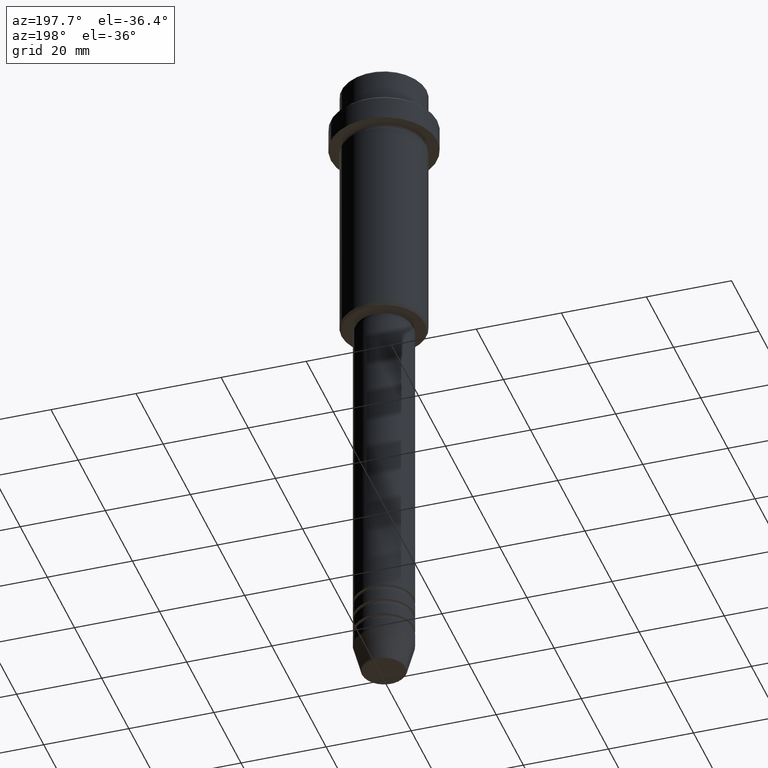
[diagram: clean part render]
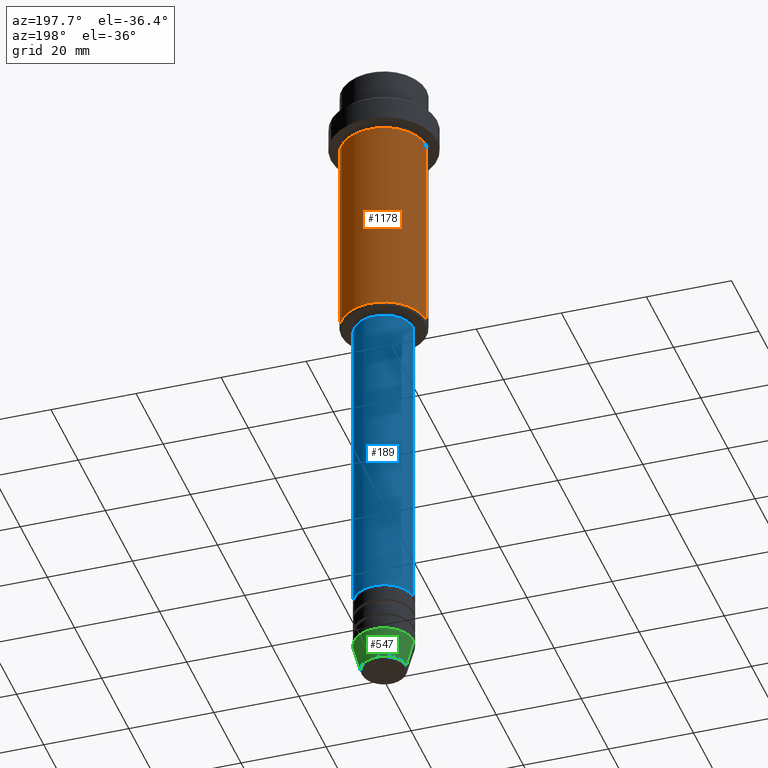
[diagram: same view with three faces highlighted in distinct colors, each labeled with its STEP entity id]
A machine part, auxiliary view with three faces highlighted in distinct colors.
Their STEP definitions:

[orange] entity #1178 — the highlighted cylindrical surface (partial cylindrical patch) has radius 10 mm, axis along (-0, -0, 1).
#62 = CARTESIAN_POINT ( 'NONE',  ( 9.999999999999998224, 0.000000000000000000, -16.00000000000000000 ) ) ;
#105 = DIRECTION ( 'NONE',  ( 1.000000000000000000, 0.000000000000000000, 0.000000000000000000 ) ) ;
#181 = EDGE_CURVE ( 'NONE', #377, #1325, #837, .T. ) ;
#245 = LINE ( 'NONE', #578, #1398 ) ;
#249 = DIRECTION ( 'NONE',  ( -0.000000000000000000, -0.000000000000000000, 1.000000000000000000 ) ) ;
#335 = CYLINDRICAL_SURFACE ( 'NONE', #1209, 9.999999999999998224 ) ;
#375 = DIRECTION ( 'NONE',  ( -0.000000000000000000, -0.000000000000000000, 1.000000000000000000 ) ) ;
#377 = VERTEX_POINT ( 'NONE', #889 ) ;
#395 = ORIENTED_EDGE ( 'NONE', *, *, #446, .F. ) ;
#446 = EDGE_CURVE ( 'NONE', #1016, #1325, #622, .T. ) ;
#474 = CARTESIAN_POINT ( 'NONE',  ( 0.000000000000000000, 0.000000000000000000, -64.50000000000000000 ) ) ;
#513 = CIRCLE ( 'NONE', #585, 9.999999999999998224 ) ;
#578 = CARTESIAN_POINT ( 'NONE',  ( 9.999999999999998224, 0.000000000000000000, 0.000000000000000000 ) ) ;
#585 = AXIS2_PLACEMENT_3D ( 'NONE', #474, #249, #1359 ) ;
#600 = ORIENTED_EDGE ( 'NONE', *, *, #181, .T. ) ;
#622 = CIRCLE ( 'NONE', #1041, 9.999999999999998224 ) ;
#664 = DIRECTION ( 'NONE',  ( -0.000000000000000000, -0.000000000000000000, 1.000000000000000000 ) ) ;
#766 = FACE_OUTER_BOUND ( 'NONE', #1014, .T. ) ;
#782 = CARTESIAN_POINT ( 'NONE',  ( 0.000000000000000000, 0.000000000000000000, 0.000000000000000000 ) ) ;
#823 = EDGE_CURVE ( 'NONE', #1318, #1016, #245, .T. ) ;
#837 = LINE ( 'NONE', #1271, #1349 ) ;
#885 = ORIENTED_EDGE ( 'NONE', *, *, #1305, .T. ) ;
#889 = CARTESIAN_POINT ( 'NONE',  ( -9.999999999999998224, 1.224646799147353059E-15, -64.50000000000000000 ) ) ;
#918 = CARTESIAN_POINT ( 'NONE',  ( 9.999999999999998224, 0.000000000000000000, -64.50000000000000000 ) ) ;
#997 = CARTESIAN_POINT ( 'NONE',  ( 0.000000000000000000, 0.000000000000000000, -16.00000000000000000 ) ) ;
#1014 = EDGE_LOOP ( 'NONE', ( #885, #600, #395, #1229 ) ) ;
#1016 = VERTEX_POINT ( 'NONE', #62 ) ;
#1041 = AXIS2_PLACEMENT_3D ( 'NONE', #997, #664, #1120 ) ;
#1045 = DIRECTION ( 'NONE',  ( -0.000000000000000000, -0.000000000000000000, 1.000000000000000000 ) ) ;
#1120 = DIRECTION ( 'NONE',  ( 1.000000000000000000, 0.000000000000000000, 0.000000000000000000 ) ) ;
#1178 = ADVANCED_FACE ( 'NONE', ( #766 ), #335, .T. ) ;
#1209 = AXIS2_PLACEMENT_3D ( 'NONE', #782, #1414, #105 ) ;
#1229 = ORIENTED_EDGE ( 'NONE', *, *, #823, .F. ) ;
#1271 = CARTESIAN_POINT ( 'NONE',  ( -9.999999999999998224, 1.224646799147353059E-15, 0.000000000000000000 ) ) ;
#1305 = EDGE_CURVE ( 'NONE', #1318, #377, #513, .T. ) ;
#1318 = VERTEX_POINT ( 'NONE', #918 ) ;
#1325 = VERTEX_POINT ( 'NONE', #1337 ) ;
#1337 = CARTESIAN_POINT ( 'NONE',  ( -9.999999999999998224, 1.224646799147353059E-15, -16.00000000000000000 ) ) ;
#1349 = VECTOR ( 'NONE', #375, 1000.000000000000000 ) ;
#1359 = DIRECTION ( 'NONE',  ( -1.000000000000000000, 0.000000000000000000, 0.000000000000000000 ) ) ;
#1398 = VECTOR ( 'NONE', #1045, 1000.000000000000000 ) ;
#1414 = DIRECTION ( 'NONE',  ( -0.000000000000000000, -0.000000000000000000, 1.000000000000000000 ) ) ;

[blue] entity #189 — the highlighted cylindrical surface (edge-blend (fillet) strip) has radius 7 mm, axis along (-0, -0, 1).
#41 = DIRECTION ( 'NONE',  ( 1.000000000000000000, 0.000000000000000000, 0.000000000000000000 ) ) ;
#73 = VERTEX_POINT ( 'NONE', #256 ) ;
#101 = CYLINDRICAL_SURFACE ( 'NONE', #1280, 7.000000000000000000 ) ;
#139 = CIRCLE ( 'NONE', #325, 7.000000000000000000 ) ;
#177 = CARTESIAN_POINT ( 'NONE',  ( -7.000000000000000000, 8.572527594031473190E-16, -66.00000000000000000 ) ) ;
#189 = ADVANCED_FACE ( 'NONE', ( #287 ), #101, .T. ) ;
#190 = ORIENTED_EDGE ( 'NONE', *, *, #1293, .F. ) ;
#256 = CARTESIAN_POINT ( 'NONE',  ( 7.000000000000000000, 0.000000000000000000, -140.9999999999999147 ) ) ;
#263 = DIRECTION ( 'NONE',  ( -0.000000000000000000, -0.000000000000000000, 1.000000000000000000 ) ) ;
#287 = FACE_OUTER_BOUND ( 'NONE', #743, .T. ) ;
#325 = AXIS2_PLACEMENT_3D ( 'NONE', #472, #378, #459 ) ;
#334 = ORIENTED_EDGE ( 'NONE', *, *, #888, .T. ) ;
#336 = CIRCLE ( 'NONE', #933, 7.000000000000000000 ) ;
#378 = DIRECTION ( 'NONE',  ( -0.000000000000000000, -0.000000000000000000, 1.000000000000000000 ) ) ;
#388 = DIRECTION ( 'NONE',  ( -0.000000000000000000, -0.000000000000000000, 1.000000000000000000 ) ) ;
#408 = CARTESIAN_POINT ( 'NONE',  ( -7.000000000000000000, 8.572527594031473190E-16, -140.9999999999999147 ) ) ;
#441 = DIRECTION ( 'NONE',  ( -0.000000000000000000, -0.000000000000000000, 1.000000000000000000 ) ) ;
#459 = DIRECTION ( 'NONE',  ( 1.000000000000000000, 0.000000000000000000, 0.000000000000000000 ) ) ;
#472 = CARTESIAN_POINT ( 'NONE',  ( 0.000000000000000000, 0.000000000000000000, -140.9999999999999147 ) ) ;
#488 = VERTEX_POINT ( 'NONE', #177 ) ;
#518 = CARTESIAN_POINT ( 'NONE',  ( -7.000000000000000000, 8.572527594031473190E-16, 0.000000000000000000 ) ) ;
#521 = DIRECTION ( 'NONE',  ( 1.000000000000000000, 0.000000000000000000, 0.000000000000000000 ) ) ;
#557 = EDGE_CURVE ( 'NONE', #1036, #488, #1173, .T. ) ;
#588 = CARTESIAN_POINT ( 'NONE',  ( 0.000000000000000000, 0.000000000000000000, -66.00000000000000000 ) ) ;
#738 = VECTOR ( 'NONE', #1052, 1000.000000000000000 ) ;
#743 = EDGE_LOOP ( 'NONE', ( #334, #1343, #190, #1312 ) ) ;
#833 = CARTESIAN_POINT ( 'NONE',  ( 7.000000000000000000, 0.000000000000000000, -66.00000000000000000 ) ) ;
#853 = CARTESIAN_POINT ( 'NONE',  ( 0.000000000000000000, 0.000000000000000000, 0.000000000000000000 ) ) ;
#888 = EDGE_CURVE ( 'NONE', #73, #1036, #139, .T. ) ;
#933 = AXIS2_PLACEMENT_3D ( 'NONE', #588, #263, #41 ) ;
#1019 = VECTOR ( 'NONE', #388, 1000.000000000000000 ) ;
#1029 = VERTEX_POINT ( 'NONE', #833 ) ;
#1036 = VERTEX_POINT ( 'NONE', #408 ) ;
#1043 = LINE ( 'NONE', #1382, #1019 ) ;
#1052 = DIRECTION ( 'NONE',  ( -0.000000000000000000, -0.000000000000000000, 1.000000000000000000 ) ) ;
#1173 = LINE ( 'NONE', #518, #738 ) ;
#1280 = AXIS2_PLACEMENT_3D ( 'NONE', #853, #441, #521 ) ;
#1293 = EDGE_CURVE ( 'NONE', #1029, #488, #336, .T. ) ;
#1312 = ORIENTED_EDGE ( 'NONE', *, *, #1391, .F. ) ;
#1343 = ORIENTED_EDGE ( 'NONE', *, *, #557, .T. ) ;
#1382 = CARTESIAN_POINT ( 'NONE',  ( 7.000000000000000000, 0.000000000000000000, 0.000000000000000000 ) ) ;
#1391 = EDGE_CURVE ( 'NONE', #73, #1029, #1043, .T. ) ;

[green] entity #547 — the highlighted conical surface has half-angle 15 deg.
#24 = CARTESIAN_POINT ( 'NONE',  ( 5.223655072137191269, 0.000000000000000000, -159.6294095225512422 ) ) ;
#36 = ORIENTED_EDGE ( 'NONE', *, *, #393, .F. ) ;
#148 = DIRECTION ( 'NONE',  ( 0.2588190451025214056, 0.000000000000000000, 0.9659258262890680902 ) ) ;
#165 = CIRCLE ( 'NONE', #525, 5.223655072137191269 ) ;
#196 = VERTEX_POINT ( 'NONE', #414 ) ;
#204 = ORIENTED_EDGE ( 'NONE', *, *, #464, .T. ) ;
#212 = EDGE_LOOP ( 'NONE', ( #204, #231, #36, #364 ) ) ;
#231 = ORIENTED_EDGE ( 'NONE', *, *, #1373, .T. ) ;
#241 = CARTESIAN_POINT ( 'NONE',  ( 0.000000000000000000, 0.000000000000000000, -153.0000000000000000 ) ) ;
#364 = ORIENTED_EDGE ( 'NONE', *, *, #1262, .F. ) ;
#393 = EDGE_CURVE ( 'NONE', #1303, #1179, #1136, .T. ) ;
#409 = DIRECTION ( 'NONE',  ( -0.000000000000000000, -0.000000000000000000, 1.000000000000000000 ) ) ;
#414 = CARTESIAN_POINT ( 'NONE',  ( -5.223655072137191269, 7.484830028987061160E-16, -159.6294095225512422 ) ) ;
#427 = VERTEX_POINT ( 'NONE', #24 ) ;
#461 = VECTOR ( 'NONE', #1131, 1000.000000000000000 ) ;
#462 = AXIS2_PLACEMENT_3D ( 'NONE', #241, #1226, #468 ) ;
#464 = EDGE_CURVE ( 'NONE', #427, #196, #165, .T. ) ;
#468 = DIRECTION ( 'NONE',  ( 1.000000000000000000, 0.000000000000000000, 0.000000000000000000 ) ) ;
#525 = AXIS2_PLACEMENT_3D ( 'NONE', #673, #1005, #551 ) ;
#547 = ADVANCED_FACE ( 'NONE', ( #730 ), #993, .T. ) ;
#551 = DIRECTION ( 'NONE',  ( 1.000000000000000000, 0.000000000000000000, 0.000000000000000000 ) ) ;
#607 = CARTESIAN_POINT ( 'NONE',  ( 0.000000000000000000, 0.000000000000000000, -153.0000000000000000 ) ) ;
#673 = CARTESIAN_POINT ( 'NONE',  ( 0.000000000000000000, 0.000000000000000000, -159.6294095225512422 ) ) ;
#730 = FACE_OUTER_BOUND ( 'NONE', #212, .T. ) ;
#803 = LINE ( 'NONE', #911, #931 ) ;
#843 = DIRECTION ( 'NONE',  ( 1.000000000000000000, 0.000000000000000000, 0.000000000000000000 ) ) ;
#911 = CARTESIAN_POINT ( 'NONE',  ( 7.000000000000000000, 0.000000000000000000, -153.0000000000000000 ) ) ;
#931 = VECTOR ( 'NONE', #148, 1000.000000000000000 ) ;
#968 = AXIS2_PLACEMENT_3D ( 'NONE', #607, #409, #843 ) ;
#977 = CARTESIAN_POINT ( 'NONE',  ( -7.000000000000000000, 8.572527594031473190E-16, -153.0000000000000000 ) ) ;
#993 = CONICAL_SURFACE ( 'NONE', #968, 7.000000000000000000, 0.2617993877991501295 ) ;
#1005 = DIRECTION ( 'NONE',  ( -0.000000000000000000, -0.000000000000000000, 1.000000000000000000 ) ) ;
#1024 = CARTESIAN_POINT ( 'NONE',  ( 7.000000000000000000, 0.000000000000000000, -153.0000000000000000 ) ) ;
#1122 = CARTESIAN_POINT ( 'NONE',  ( -7.000000000000000000, 8.572527594031473190E-16, -153.0000000000000000 ) ) ;
#1131 = DIRECTION ( 'NONE',  ( -0.2588190451025214056, 3.169619151431772953E-17, 0.9659258262890680902 ) ) ;
#1136 = CIRCLE ( 'NONE', #462, 7.000000000000000000 ) ;
#1179 = VERTEX_POINT ( 'NONE', #977 ) ;
#1226 = DIRECTION ( 'NONE',  ( -0.000000000000000000, -0.000000000000000000, 1.000000000000000000 ) ) ;
#1228 = LINE ( 'NONE', #1122, #461 ) ;
#1262 = EDGE_CURVE ( 'NONE', #427, #1303, #803, .T. ) ;
#1303 = VERTEX_POINT ( 'NONE', #1024 ) ;
#1373 = EDGE_CURVE ( 'NONE', #196, #1179, #1228, .T. ) ;